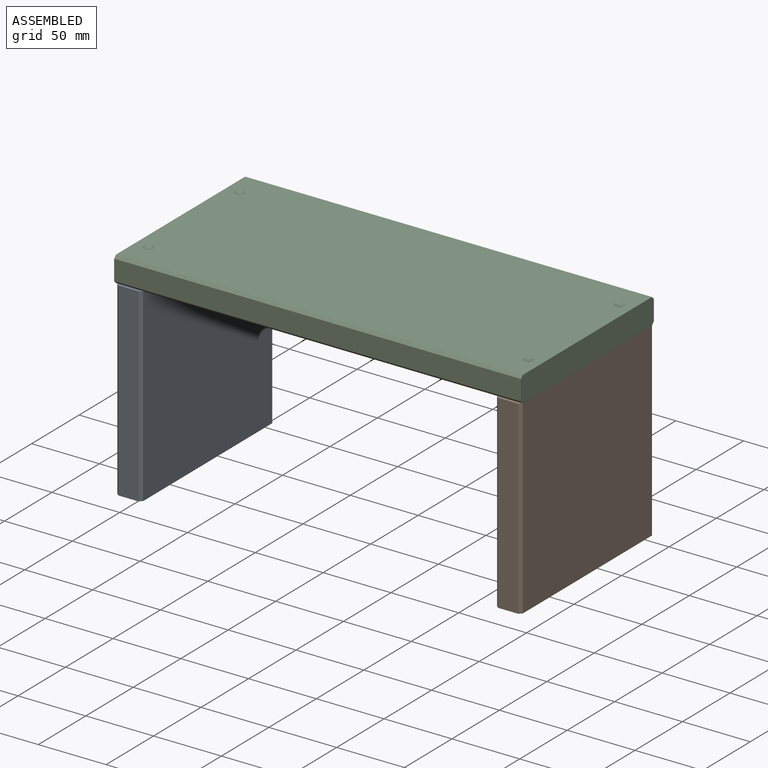
[diagram: assembled view]
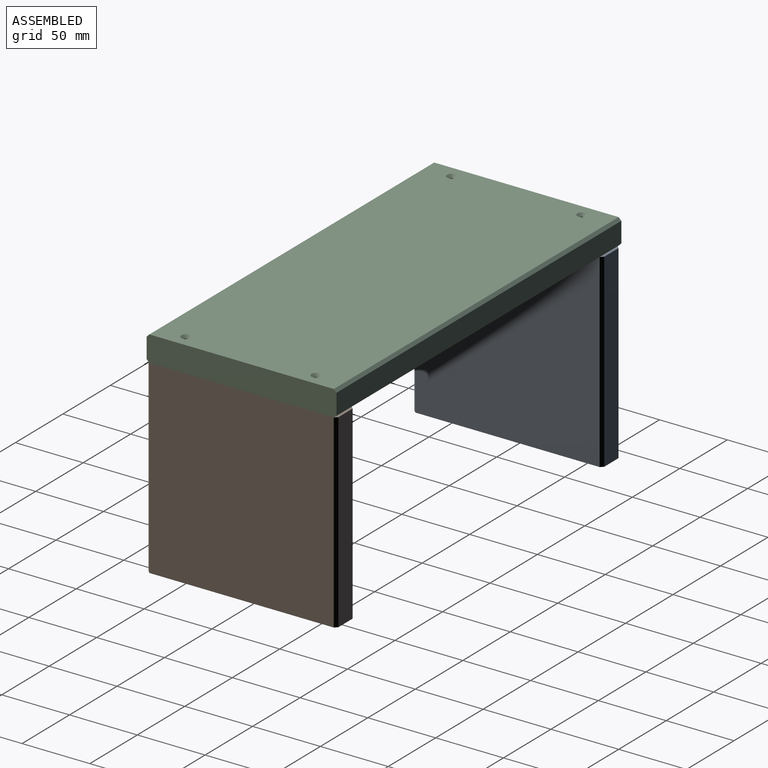
[diagram: assembled view, second angle]
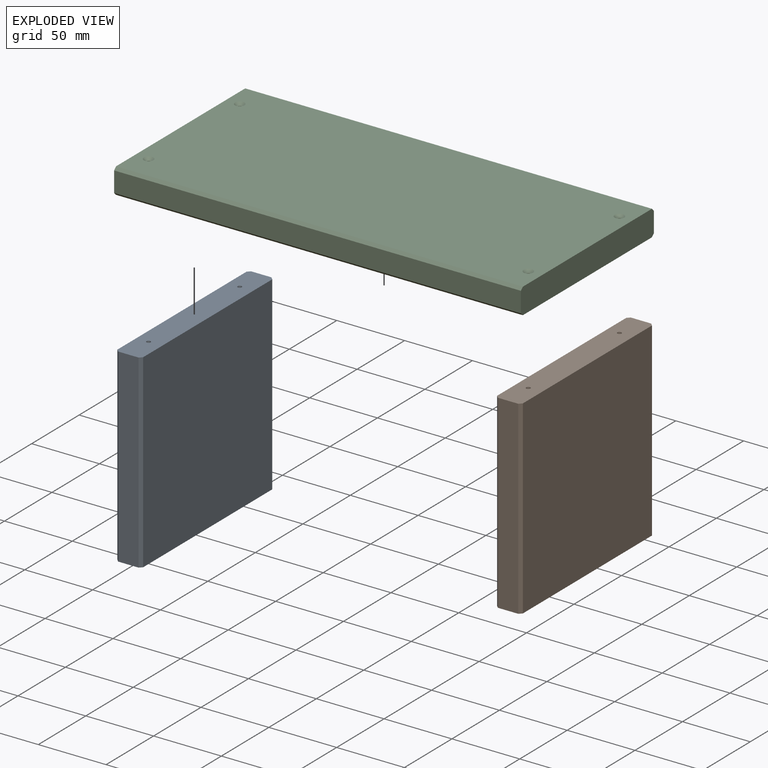
[diagram: exploded view]
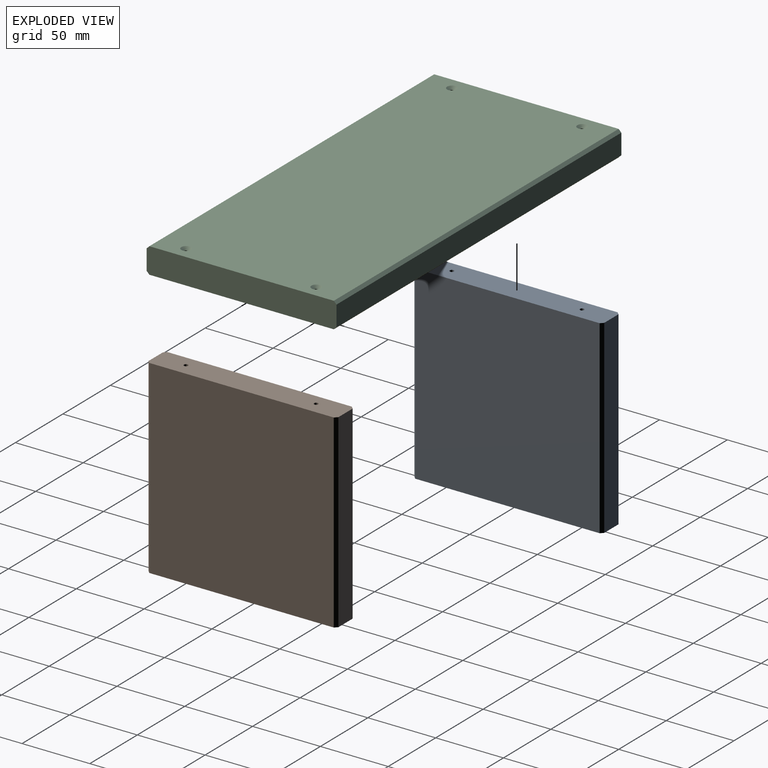
[diagram: exploded view, second angle]
ASSEMBLY  parts=3 mates=4
PART A: 14 faces, bbox 140x140x19 mm
  f0: plane 140x19mm, normal (0,1,0), area 2637.9mm2, adj f1,f3,f4,f5,f6,f8,f10,f11
  f1: plane 140x15mm, normal (-1,0,0), area 2100mm2, adj f0,f2,f10,f11
  f2: plane 140x19mm, normal (0,-1,0), area 2652mm2, adj f1,f3,f4,f5,f10,f11,f12,f13
  f3: plane 140x15mm, normal (1,0,0), area 2100mm2, adj f0,f2,f12,f13
  f4: plane 140x136mm, normal (0,0,1), area 19040mm2, adj f0,f2,f11,f13
  f5: plane 140x136mm, normal (0,0,-1), area 19040mm2, adj f0,f2,f10,f12
  f6: cylinder r=1.5mm len=10mm, axis (0,1,0), area 94.2mm2, adj f0,f7
  f7: plane 3x3mm, normal (0,1,0), area 7.1mm2, adj f6
  f8: cylinder r=1.5mm len=10mm, axis (0,1,0), area 94.2mm2, adj f0,f9
  f9: plane 3x3mm, normal (0,1,0), area 7.1mm2, adj f8
  f10: plane 140x2mm, normal (-0.71,0,-0.71), area 396mm2, adj f0,f1,f2,f5
  f11: plane 140x2mm, normal (-0.71,0,0.71), area 396mm2, adj f0,f1,f2,f4
  f12: plane 140x2mm, normal (0.71,0,-0.71), area 396mm2, adj f0,f2,f3,f5
  f13: plane 140x2mm, normal (0.71,0,0.71), area 396mm2, adj f0,f2,f3,f4
PART B: 14 faces, bbox 140x140x19 mm
  f0: plane 140x19mm, normal (0,1,0), area 2637.9mm2, adj f1,f3,f4,f5,f6,f8,f10,f11
  f1: plane 140x15mm, normal (1,0,0), area 2100mm2, adj f0,f2,f10,f11
  f2: plane 140x19mm, normal (0,-1,0), area 2652mm2, adj f1,f3,f4,f5,f10,f11,f12,f13
  f3: plane 140x15mm, normal (-1,0,0), area 2100mm2, adj f0,f2,f12,f13
  f4: plane 140x136mm, normal (0,0,1), area 19040mm2, adj f0,f2,f11,f13
  f5: plane 140x136mm, normal (0,0,-1), area 19040mm2, adj f0,f2,f10,f12
  f6: cylinder r=1.5mm len=10mm, axis (0,1,0), area 94.2mm2, adj f0,f7
  f7: plane 3x3mm, normal (0,1,0), area 7.1mm2, adj f6
  f8: cylinder r=1.5mm len=10mm, axis (0,1,0), area 94.2mm2, adj f0,f9
  f9: plane 3x3mm, normal (0,1,0), area 7.1mm2, adj f8
  f10: plane 140x2mm, normal (0.71,0,-0.71), area 396mm2, adj f0,f1,f2,f5
  f11: plane 140x2mm, normal (0.71,0,0.71), area 396mm2, adj f0,f1,f2,f4
  f12: plane 140x2mm, normal (-0.71,0,-0.71), area 396mm2, adj f0,f2,f3,f5
  f13: plane 140x2mm, normal (-0.71,0,0.71), area 396mm2, adj f0,f2,f3,f4
PART C: 18 faces, bbox 300x140x19 mm
  f0: plane 300x15mm, normal (0,1,0), area 4500mm2, adj f1,f3,f6,f9
  f1: plane 140x19mm, normal (-1,0,0), area 2652mm2, adj f0,f2,f4,f5,f6,f7,f8,f9
  f2: plane 300x15mm, normal (0,-1,0), area 4500mm2, adj f1,f3,f7,f8
  f3: plane 140x19mm, normal (1,0,0), area 2652mm2, adj f0,f2,f4,f5,f6,f7,f8,f9
  f4: plane 300x136mm, normal (0,0,1), area 40646.1mm2, adj f1,f3,f8,f9,f14,f15,f16,f17
  f5: plane 300x136mm, normal (0,0,-1), area 40771.7mm2, adj f1,f3,f6,f7,f10,f11,f12,f13
  f6: plane 300x2mm, normal (0,0.71,-0.71), area 848.5mm2, adj f0,f1,f3,f5
  f7: plane 300x2mm, normal (0,-0.71,-0.71), area 848.5mm2, adj f1,f2,f3,f5
  f8: plane 300x2mm, normal (0,-0.71,0.71), area 848.5mm2, adj f1,f2,f3,f4
  f9: plane 300x2mm, normal (0,0.71,0.71), area 848.5mm2, adj f0,f1,f3,f4
  f10: cylinder r=1.5mm len=17mm, axis (0,0,1), area 160.2mm2, adj f5,f16
  f11: cylinder r=1.5mm len=17mm, axis (0,0,1), area 160.2mm2, adj f5,f15
  f12: cylinder r=1.5mm len=17mm, axis (0,0,1), area 160.2mm2, adj f5,f14
  f13: cylinder r=1.5mm len=17mm, axis (0,0,1), area 160.2mm2, adj f5,f17
  f14: cone r=1.5mm half-angle=45deg, axis (0,0,1), area 44.4mm2, adj f4,f12
  f15: cone r=1.5mm half-angle=45deg, axis (0,0,1), area 44.4mm2, adj f4,f11
  f16: cone r=1.5mm half-angle=45deg, axis (0,0,1), area 44.4mm2, adj f4,f10
  f17: cone r=1.5mm half-angle=45deg, axis (0,0,1), area 44.4mm2, adj f4,f13
PLACE A rot(axis=(0.58,-0.58,-0.58),120deg) t=(-136.67,82.24,196.49)mm
PLACE B rot(axis=(0.58,-0.58,-0.58),120deg) t=(143.33,272.24,196.49)mm
PLACE C t=(-99.2,57.79,-41.33)mm
MATE parallel B.f6 <-> C.f11  axis (0,0,1) through (133.33,200.24,-41.33)mm
MATE parallel B.f6 <-> C.f11  axis (0,0,1) through (133.33,200.24,-41.33)mm
MATE parallel A.f8 <-> C.f10  axis (0,0,1) through (-146.67,200.24,-41.33)mm
MATE parallel A.f8 <-> C.f10  axis (0,0,1) through (-146.67,200.24,-41.33)mm
